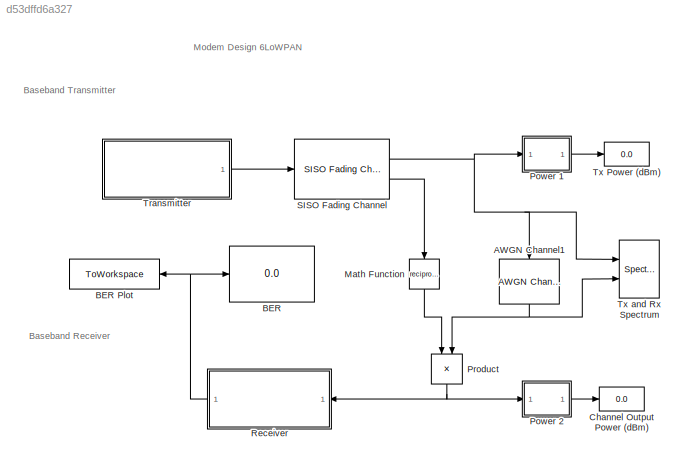
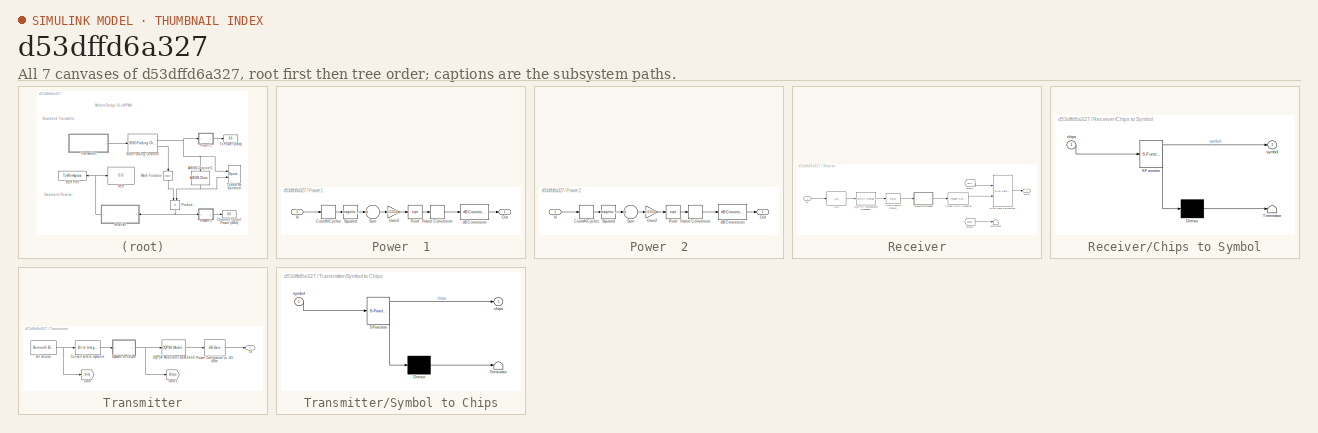
[diagram: thumbnail index - all 7 canvases of the model, root first then tree order]
MODEL slx_d53dffd6a327
KIND model
CONFIG AbsTol = auto
CONFIG EnableMultiTasking = off
CONFIG FixedStep = auto
CONFIG MaxStep = auto
CONFIG MinStep = auto
CONFIG RelTol = 1e-3
CONFIG SampleTimeConstraint = Unconstrained
CONFIG Solver = VariableStepAuto
CONFIG SolverName = VariableStepAuto
CONFIG StartTime = 0.0
CONFIG StopTime = 0.5
BLOCK [Reference] AWGN Channel1  REF=commchan3/AWGN
Channel
  Ports = [1, 1]
  SourceBlock = commchan3/AWGN\nChannel
  SourceProductBaseCode = CM
  SourceProductName = Communications Toolbox
  SourceType = AWGN Channel
  UserDataPersistent = on
BLOCK [Display] BER
  Decimation = 1
  Ports = [1]
BLOCK [ToWorkspace] BER Plot
  FixptAsFi = on
  MaxDataPoints = 2
  Ports = [1]
  SampleTime = -1
  Save2DSignal = 2-D array (concatenate along first dimension)
  VariableName = ber
BLOCK [Display] Channel Output Power (dBm)
  Decimation = 1
  Ports = [1]
BLOCK [Math] Math Function
  Operator = reciprocal
  Ports = [1, 1]
  SignedPower = off
BLOCK [SubSystem] Power  1
  Ports = [1, 1]
  RequestExecContextInheritance = off
BLOCK [Buffer] Power  1/CountNCycles
  N = 1024
BLOCK [FrameConversion] Power  1/Frame Conversion
  OutFrame = Sample-based
  Ports = [1, 1]
BLOCK [Gain] Power  1/Gain2
  Gain = 1/1024
  OutDataTypeStr = Inherit: Inherit via internal rule
  ParamDataTypeStr = Inherit: Inherit via internal rule
  SaturateOnIntegerOverflow = off
BLOCK [Inport] Power  1/In
  IconDisplay = Port number
BLOCK [Outport] Power  1/Out
  IconDisplay = Port number
  VectorParamsAs1DForOutWhenUnconnected = off
BLOCK [Sqrt] Power  1/Root
BLOCK [Math] Power  1/Squared
  Operator = magnitude^2
  Ports = [1, 1]
BLOCK [Sum] Power  1/Sum
  CollapseMode = Specified dimension
  InputSameDT = off
  Inputs = +
  OutDataTypeStr = Inherit: Inherit via internal rule
  Ports = [1, 1]
  SaturateOnIntegerOverflow = off
BLOCK [Reference] Power  1/dB Conversion  REF=dspmathops/dB Conversion
  Ports = [1, 1]
  SourceBlock = dspmathops/dB Conversion
  SourceProductBaseCode = DS
  SourceProductName = DSP System Toolbox
  SourceType = dB Conversion
BLOCK [SubSystem] Power  2
  Ports = [1, 1]
  RequestExecContextInheritance = off
  ShowPortLabels = none
BLOCK [Buffer] Power  2/CountNCycles
  N = 1024
BLOCK [FrameConversion] Power  2/Frame Conversion
  OutFrame = Sample-based
  Ports = [1, 1]
BLOCK [Gain] Power  2/Gain2
  Gain = 1/1024
  OutDataTypeStr = Inherit: Inherit via internal rule
  ParamDataTypeStr = Inherit: Inherit via internal rule
  SaturateOnIntegerOverflow = off
BLOCK [Inport] Power  2/In
  IconDisplay = Port number
BLOCK [Outport] Power  2/Out
  IconDisplay = Port number
  VectorParamsAs1DForOutWhenUnconnected = off
BLOCK [Sqrt] Power  2/Root
BLOCK [Math] Power  2/Squared
  Operator = magnitude^2
  Ports = [1, 1]
BLOCK [Sum] Power  2/Sum
  CollapseMode = Specified dimension
  InputSameDT = off
  Inputs = +
  OutDataTypeStr = Inherit: Inherit via internal rule
  Ports = [1, 1]
  SaturateOnIntegerOverflow = off
BLOCK [Reference] Power  2/dB Conversion  REF=dspmathops/dB Conversion
  Ports = [1, 1]
  SourceBlock = dspmathops/dB Conversion
  SourceProductBaseCode = DS
  SourceProductName = DSP System Toolbox
  SourceType = dB Conversion
BLOCK [Product] Product
  InputSameDT = off
  OutDataTypeStr = Inherit: Inherit via internal rule
  Ports = [2, 1]
  RndMeth = Floor
  SaturateOnIntegerOverflow = off
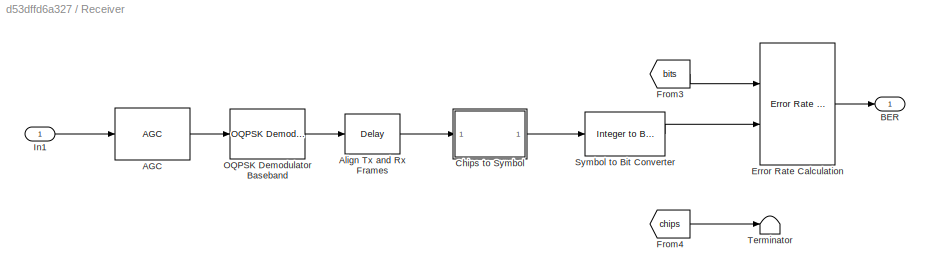
BLOCK [SubSystem] Receiver
  Ports = [1, 1]
  RequestExecContextInheritance = off
BLOCK [Reference] Receiver/AGC  REF=commrfcorlib/AGC
  Ports = [1, 1]
  SourceBlock = commrfcorlib/AGC
  SourceProductBaseCode = CM
  SourceProductName = Communications Toolbox
  SourceType = AGC
BLOCK [Delay] Receiver/Align Tx and Rx Frames
  DelayLength = cps - 1 - 1  % chips/sym - tx filter delay - rx filter delay
  InputPortMap = u0
  InputProcessing = Columns as channels (frame based)
  Ports = [1, 1]
BLOCK [Outport] Receiver/BER
  IconDisplay = Port number
  VectorParamsAs1DForOutWhenUnconnected = off
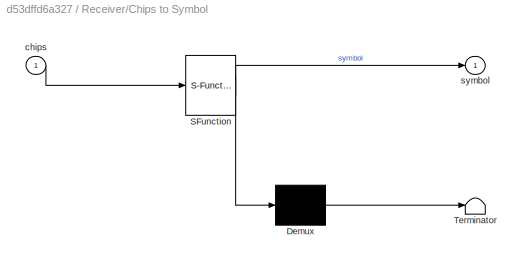
BLOCK [SubSystem] Receiver/Chips to Symbol
  ErrorFcn = Stateflow.Translate.translate
  PermitHierarchicalResolution = ExplicitOnly
  Ports = [1, 1]
  RequestExecContextInheritance = off
  SFBlockType = MATLAB Function
  TreatAsAtomicUnit = on
BLOCK [Demux] Receiver/Chips to Symbol/ Demux 
  Outputs = 1
  Ports = [1, 1]
BLOCK [S-Function] Receiver/Chips to Symbol/ SFunction 
  EnableBusSupport = on
  FunctionName = sf_sfun
  PortCounts = [1 2]
  Ports = [1, 2]
  SFcnIsStateOwnerBlock = off
  SFunctionDeploymentMode = off
  Tag = Stateflow S-Function 1
BLOCK [Terminator] Receiver/Chips to Symbol/ Terminator 
BLOCK [Inport] Receiver/Chips to Symbol/chips
  IconDisplay = Port number
BLOCK [Outport] Receiver/Chips to Symbol/symbol
  IconDisplay = Port number
  VectorParamsAs1DForOutWhenUnconnected = off
BLOCK [Reference] Receiver/Error Rate Calculation  REF=commsink2/Error Rate
Calculation
  Ports = [2, 1]
  SourceBlock = commsink2/Error Rate\nCalculation
  SourceProductBaseCode = CM
  SourceProductName = Communications Toolbox
  SourceType = Error Rate Calculation
BLOCK [From] Receiver/From3
  GotoTag = bits
  TagVisibility = global
BLOCK [From] Receiver/From4
  GotoTag = chips
  TagVisibility = global
BLOCK [Inport] Receiver/In1
  IconDisplay = Port number
BLOCK [Reference] Receiver/OQPSK Demodulator Baseband  REF=commdigbbndpm3/OQPSK
Demodulator
Baseband
  Ports = [1, 1]
  SourceBlock = commdigbbndpm3/OQPSK\nDemodulator\nBaseband
  SourceProductBaseCode = CM
  SourceProductName = Communications Toolbox
  SourceType = OQPSK Demodulator Baseband
  UserDataPersistent = on
BLOCK [Reference] Receiver/Symbol to Bit Converter  REF=commutil2/Integer to Bit
Converter
  Ports = [1, 1]
  SourceBlock = commutil2/Integer to Bit\nConverter
  SourceProductBaseCode = CM
  SourceProductName = Communications Toolbox
  SourceType = Integer to Bit Converter
BLOCK [Terminator] Receiver/Terminator
BLOCK [Reference] SISO Fading Channel  REF=commchan3/SISO Fading Channel
  Ports = [1, 2]
  SourceBlock = commchan3/SISO Fading Channel
  SourceProductBaseCode = CM
  SourceProductName = Communications Toolbox
  SourceType = SISO Fading Channel
BLOCK [SubSystem] Transmitter
  Ports = [0, 1]
  RequestExecContextInheritance = off
BLOCK [Reference] Transmitter/Bit Source  REF=commrandsrc3/Bernoulli Binary
Generator
  Ports = [0, 1]
  SourceBlock = commrandsrc3/Bernoulli Binary\nGenerator
  SourceProductBaseCode = CM
  SourceProductName = Communications Toolbox
  SourceType = Bernoulli Binary Generator
BLOCK [Reference] Transmitter/Convert Bits to Symbols  REF=commutil2/Bit to Integer
Converter
  Ports = [1, 1]
  SourceBlock = commutil2/Bit to Integer\nConverter
  SourceProductBaseCode = CM
  SourceProductName = Communications Toolbox
  SourceType = Bit to Integer Converter
BLOCK [Goto] Transmitter/Goto
  GotoTag = bits
  TagVisibility = global
BLOCK [Goto] Transmitter/Goto1
  GotoTag = chips
  TagVisibility = global
BLOCK [Reference] Transmitter/OQPSK Modulator Baseband  REF=commdigbbndpm3/OQPSK
Modulator
Baseband
  Ports = [1, 1]
  SourceBlock = commdigbbndpm3/OQPSK\nModulator\nBaseband
  SourceProductBaseCode = CM
  SourceProductName = Communications Toolbox
  SourceType = OQPSK Modulator Baseband
  UserDataPersistent = on
BLOCK [Reference] Transmitter/Power Calibration to -85 dBm  REF=dspmathops/dB Gain
  Ports = [1, 1]
  SourceBlock = dspmathops/dB Gain
  SourceProductBaseCode = DS
  SourceProductName = DSP System Toolbox
  SourceType = dB Gain
BLOCK [SubSystem] Transmitter/Symbol to Chips
  ErrorFcn = Stateflow.Translate.translate
  PermitHierarchicalResolution = ExplicitOnly
  Ports = [1, 1]
  RequestExecContextInheritance = off
  SFBlockType = MATLAB Function
  TreatAsAtomicUnit = on
BLOCK [Demux] Transmitter/Symbol to Chips/ Demux 
  Outputs = 1
  Ports = [1, 1]
BLOCK [S-Function] Transmitter/Symbol to Chips/ SFunction 
  EnableBusSupport = on
  FunctionName = sf_sfun
  PortCounts = [1 2]
  Ports = [1, 2]
  SFcnIsStateOwnerBlock = off
  SFunctionDeploymentMode = off
  Tag = Stateflow S-Function 2
BLOCK [Terminator] Transmitter/Symbol to Chips/ Terminator 
BLOCK [Outport] Transmitter/Symbol to Chips/chips
  IconDisplay = Port number
  VectorParamsAs1DForOutWhenUnconnected = off
BLOCK [Inport] Transmitter/Symbol to Chips/symbol
  IconDisplay = Port number
BLOCK [Outport] Transmitter/TX
  IconDisplay = Port number
BLOCK [Display] Tx Power (dBm)
  Decimation = 1
  Ports = [1]
BLOCK [SpectrumAnalyzer] Tx and Rx Spectrum
  NumInputPorts = 2
  Ports = [2]
  ScopeSpecificationString = spbscopes.SpectrumAnalyzerBlockCfg('CurrentConfiguration', extmgr.ConfigurationSet(extmgr.Configuration('Core','General UI',true,'DisplayFullSourceName',true),extmgr.Configuration('Core','Source UI',true),extmgr.Configuration('Sources','WiredSimulink',true),extmgr.Configuration('Sources','SPTool',false),extmgr.Configuration('Sources','Workspace',false),extmgr.Configuration('Sources','Simulink',fal...<+3431ch>
ANNOTATION (root): Baseband Receiver
ANNOTATION (root): Baseband Transmitter
ANNOTATION (root): Modem Design 6LoWPAN
NET AWGN Channel1:1 -> Product:2, Tx and Rx Spectrum:2
LINE Math Function:1 -> Product:1
LINE Power  1/CountNCycles:1 -> Power  1/Squared:1
LINE Power  1/Frame Conversion:1 -> Power  1/dB Conversion:1
LINE Power  1/Gain2:1 -> Power  1/Root:1
LINE Power  1/In:1 -> Power  1/CountNCycles:1
LINE Power  1/Root:1 -> Power  1/Frame Conversion:1
LINE Power  1/Squared:1 -> Power  1/Sum:1
LINE Power  1/Sum:1 -> Power  1/Gain2:1
LINE Power  1/dB Conversion:1 -> Power  1/Out:1
LINE Power  1:1 -> Tx Power (dBm):1
LINE Power  2/CountNCycles:1 -> Power  2/Squared:1
LINE Power  2/Frame Conversion:1 -> Power  2/dB Conversion:1
LINE Power  2/Gain2:1 -> Power  2/Root:1
LINE Power  2/In:1 -> Power  2/CountNCycles:1
LINE Power  2/Root:1 -> Power  2/Frame Conversion:1
LINE Power  2/Squared:1 -> Power  2/Sum:1
LINE Power  2/Sum:1 -> Power  2/Gain2:1
LINE Power  2/dB Conversion:1 -> Power  2/Out:1
LINE Power  2:1 -> Channel Output Power (dBm):1
NET Product:1 -> Power  2:1, Receiver:1
LINE Receiver/AGC:1 -> Receiver/OQPSK Demodulator Baseband:1
LINE Receiver/Align Tx and Rx Frames:1 -> Receiver/Chips to Symbol:1
LINE Receiver/Chips to Symbol:1 -> Receiver/Symbol to Bit Converter:1
LINE Receiver/Error Rate Calculation:1 -> Receiver/BER:1
LINE Receiver/From3:1 -> Receiver/Error Rate Calculation:1
LINE Receiver/From4:1 -> Receiver/Terminator:1
LINE Receiver/In1:1 -> Receiver/AGC:1
LINE Receiver/OQPSK Demodulator Baseband:1 -> Receiver/Align Tx and Rx Frames:1
LINE Receiver/Symbol to Bit Converter:1 -> Receiver/Error Rate Calculation:2
NET Receiver:1 -> BER Plot:1, BER:1
NET SISO Fading Channel:1 -> AWGN Channel1:1, Power  1:1, Tx and Rx Spectrum:1
LINE SISO Fading Channel:2 -> Math Function:1
NET Transmitter/Bit Source:1 -> Transmitter/Convert Bits to Symbols:1, Transmitter/Goto:1
LINE Transmitter/Convert Bits to Symbols:1 -> Transmitter/Symbol to Chips:1
LINE Transmitter/OQPSK Modulator Baseband:1 -> Transmitter/Power Calibration to -85 dBm:1
LINE Transmitter/Power Calibration to -85 dBm:1 -> Transmitter/TX:1
NET Transmitter/Symbol to Chips:1 -> Transmitter/Goto1:1, Transmitter/OQPSK Modulator Baseband:1
LINE Transmitter:1 -> SISO Fading Channel:1
note: NET lines group one-source signal fan-out (src -> all destinations, sorted); 1:1 wires keep LINE
CHART Receiver/Chips to Symbol states=1 transitions=1
  STATE_LABEL 'eML_blk_kernel()'
  STATE_LABEL 'SCRIPT:\nfunction symbol = chips2sym(chips)\n  chipMap = ...\n     [1 1 0 1 1 0 0 1 1 1 0 0 0 0 1 1 0 1 0 1 0 0 1 0 0 0 1 0 1 1 1 0;\n      1 1 1 0 1 1 0 1 1 0 0 1 1 1 0 0 0 0 1 1 0 1 0 1 0 0 1 0 0 0 1 0;\n      0 0 1 0 1 1 1 0 1 1 0 1 1 0 0 1 1 1 0 0 0 0 1 1 0 1 0 1 0 0 1 0;\n      0 0 1 0 0 0 1 0 1 1 1 0 1 1 0 1 1 0 0 1 1 1 0 0 0 0 1 1 0 1 0 1;\n      0 1 0 1 0 0 1 0 0 0 1 0 1 1 1 0 1 1 0 1 1 0 0 1 1 1...<+1002ch>'
CHART Transmitter/Symbol to Chips states=1 transitions=1
  STATE_LABEL 'eML_blk_kernel()'
  STATE_LABEL 'SCRIPT:\nfunction chips = sym2chips(symbol)\n  chipMap = ...\n     [1 1 0 1 1 0 0 1 1 1 0 0 0 0 1 1 0 1 0 1 0 0 1 0 0 0 1 0 1 1 1 0;\n      1 1 1 0 1 1 0 1 1 0 0 1 1 1 0 0 0 0 1 1 0 1 0 1 0 0 1 0 0 0 1 0;\n      0 0 1 0 1 1 1 0 1 1 0 1 1 0 0 1 1 1 0 0 0 0 1 1 0 1 0 1 0 0 1 0;\n      0 0 1 0 0 0 1 0 1 1 1 0 1 1 0 1 1 0 0 1 1 1 0 0 0 0 1 1 0 1 0 1;\n      0 1 0 1 0 0 1 0 0 0 1 0 1 1 1 0 1 1 0 1 1 0 0 1 1 1...<+854ch>'
